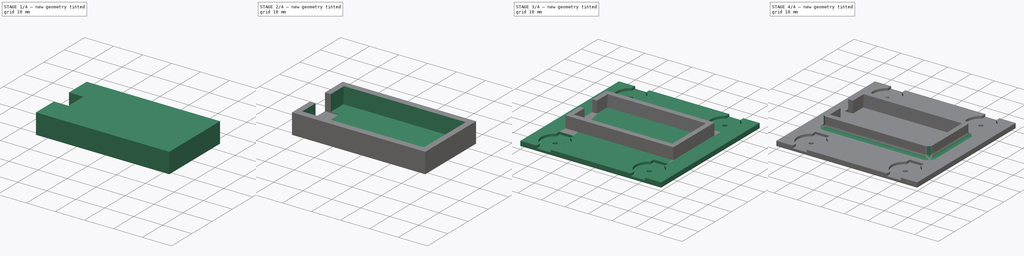
[diagram: build sequence overview — one tinted view per stage of 4, left to right]
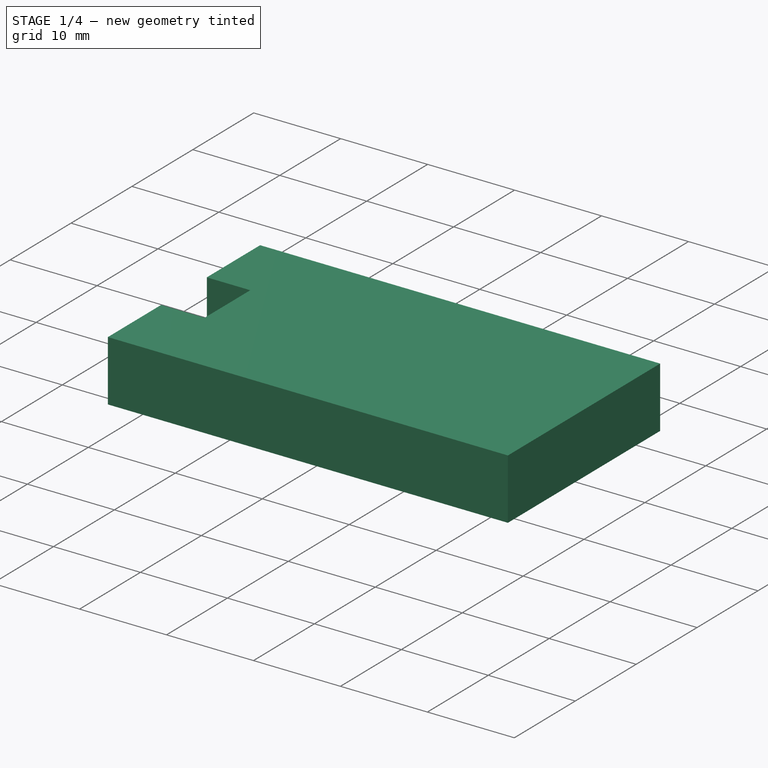
[diagram: stage 1 of 4 — iso view after this stage's code; geometry added in this stage tinted green]
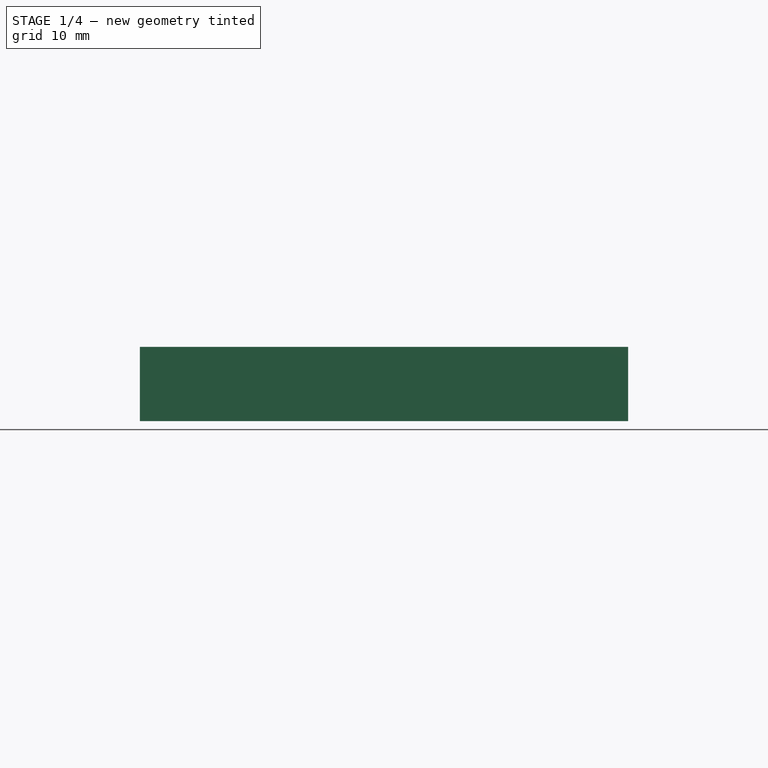
[diagram: stage 1 of 4 — front view after this stage's code; geometry added in this stage tinted green]
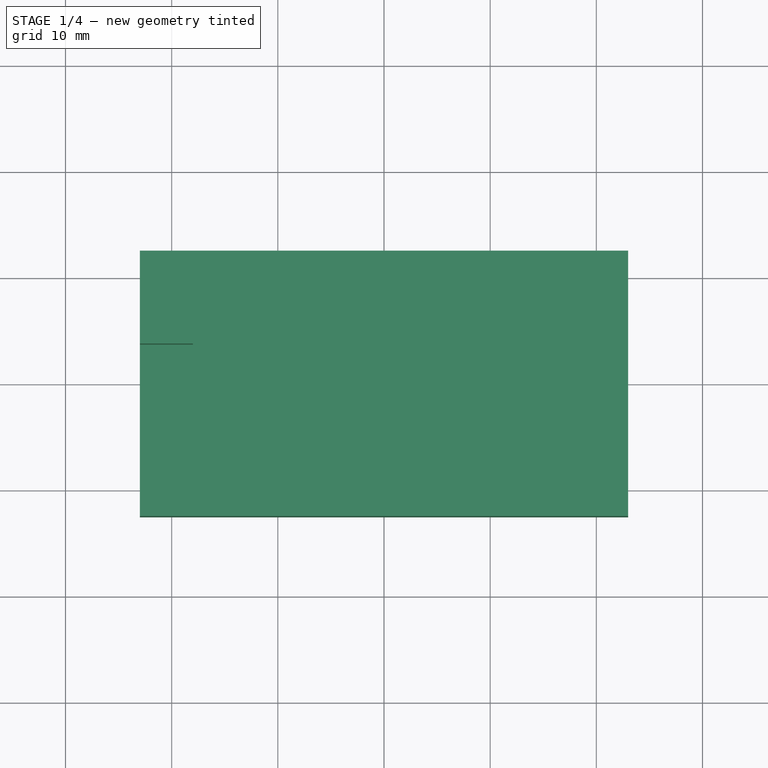
[diagram: stage 1 of 4 — top view after this stage's code; geometry added in this stage tinted green]
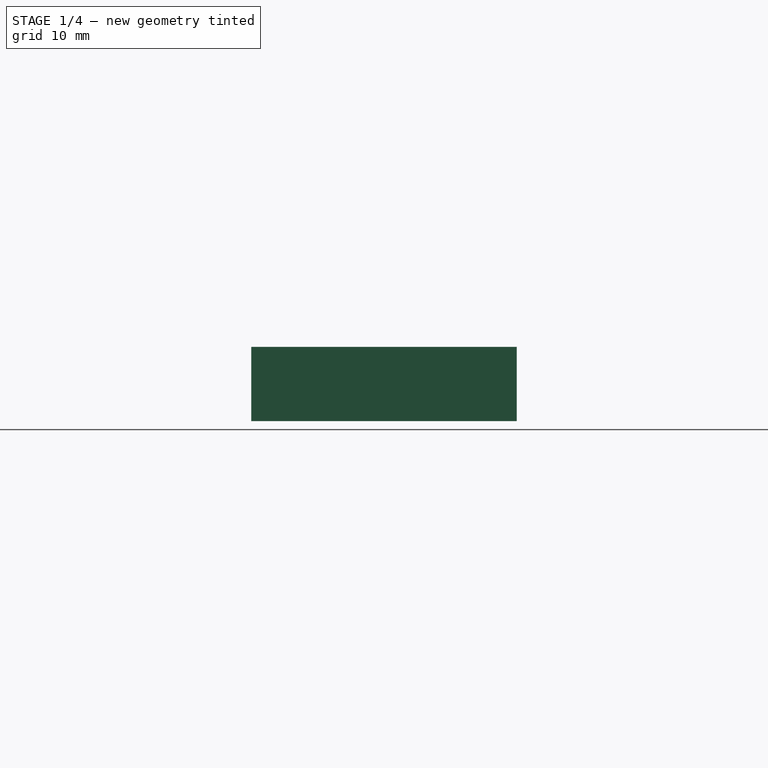
[diagram: stage 1 of 4 — right view after this stage's code; geometry added in this stage tinted green]
FCSTD DOCUMENT  (FreeCAD 0.17R13519 (Git))
Label: Soporte_servo_chincheta
License: CreativeCommons Attribution-ShareAlike
LicenseURL: http://creativecommons.org/licenses/by-sa/4.0/
objects: Sketcher::SketchObject×6, PartDesign::Pad×3, PartDesign::Body×3, PartDesign::Pocket×3, Part::Feature×2, Part::Cut×1, Part::MultiFuse×1, Part::Fillet×1
note: 26 computed .brp shape members not serialized (recipe doc carries the construction recipe); baked Part::Feature solids carry a one-line shape summary decoded from their .brp

FEATURE [Sketcher::SketchObject] Sketch001
  MapMode = 5
  Support = -> [XY_Plane001]
  sketch-geometry (4):
    g0: LineSegment StartX=-23 StartY=12.5 StartZ=0 EndX=23 EndY=12.5 EndZ=0
    g1: LineSegment StartX=23 StartY=12.5 StartZ=0 EndX=23 EndY=-12.5 EndZ=0
    g2: LineSegment StartX=23 StartY=-12.5 StartZ=0 EndX=-23 EndY=-12.5 EndZ=0
    g3: LineSegment StartX=-23 StartY=-12.5 StartZ=0 EndX=-23 EndY=12.5 EndZ=0
  constraints (11):
    c: Coincident(g0,g1)
    c: Coincident(g1,g2)
    c: Coincident(g2,g3)
    c: Coincident(g3,g0)
    c: Horizontal(g0)
    c: Horizontal(g2)
    c: Vertical(g1)
    c: Vertical(g3)
    c: Symmetric(g0,g1,g-1)
    c: DistanceX(g0,g0) = 46
    c: DistanceY(g3,g3) = 25
FEATURE [PartDesign::Pad] Pad001
  Length = 7
  Length2 = 100
  Profile = -> Sketch001
  Refine = true
  Type = 0
FEATURE [PartDesign::Body] Body002
  Group = -> [Sketch002,Pad002]
  Origin = -> Origin002
  Tip = -> Pad002
FEATURE [Sketcher::SketchObject] Sketch003
  MapMode = 5
  Placement = pos=(-23,0,0) rot=(0.57735,-0.57735,-0.57735;2.0944rad)
  Support = -> [Pad001]
  sketch-geometry (4):
    g0: LineSegment StartX=-3.75 StartY=8.56582 StartZ=0 EndX=3.75 EndY=8.56582 EndZ=0
    g1: LineSegment StartX=3.75 StartY=8.56582 StartZ=0 EndX=3.75 EndY=1.15667 EndZ=0
    g2: LineSegment StartX=3.75 StartY=1.15667 StartZ=0 EndX=-3.75 EndY=1.15667 EndZ=0
    g3: LineSegment StartX=-3.75 StartY=1.15667 StartZ=0 EndX=-3.75 EndY=8.56582 EndZ=0
  constraints (10):
    c: Coincident(g0,g1)
    c: Coincident(g1,g2)
    c: Coincident(g2,g3)
    c: Coincident(g3,g0)
    c: Horizontal(g0)
    c: Horizontal(g2)
    c: Vertical(g1)
    c: Vertical(g3)
    c: DistanceX(g0,g0) = 7.5
    c: Symmetric(g0,g0,g-2)
FEATURE [PartDesign::Pocket] Pocket
  BaseFeature = -> Pad001
  Length = 5
  Length2 = 100
  Profile = -> Sketch003
  Refine = true
  Type = 0
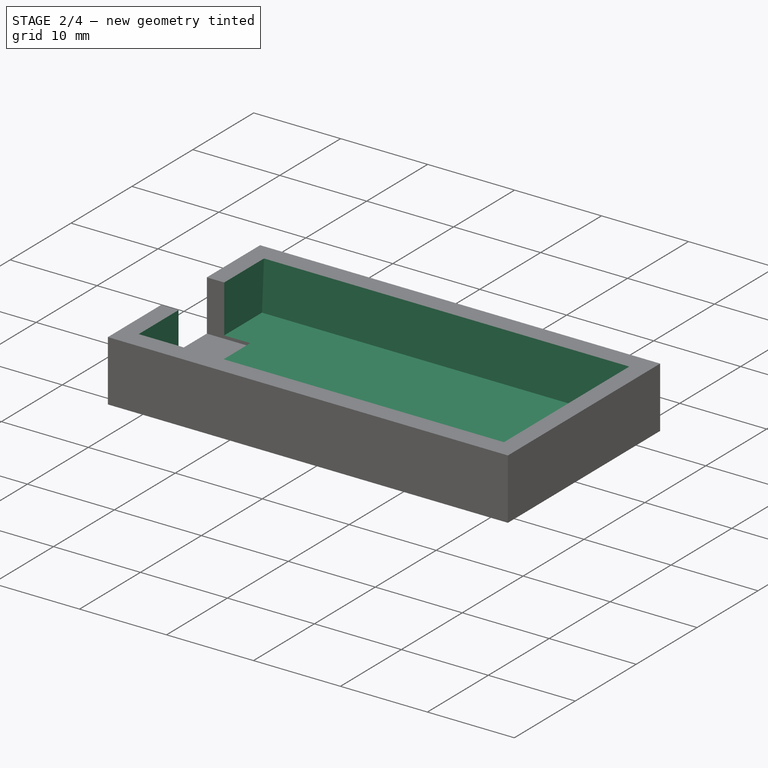
[diagram: stage 2 of 4 — iso view after this stage's code; geometry added in this stage tinted green]
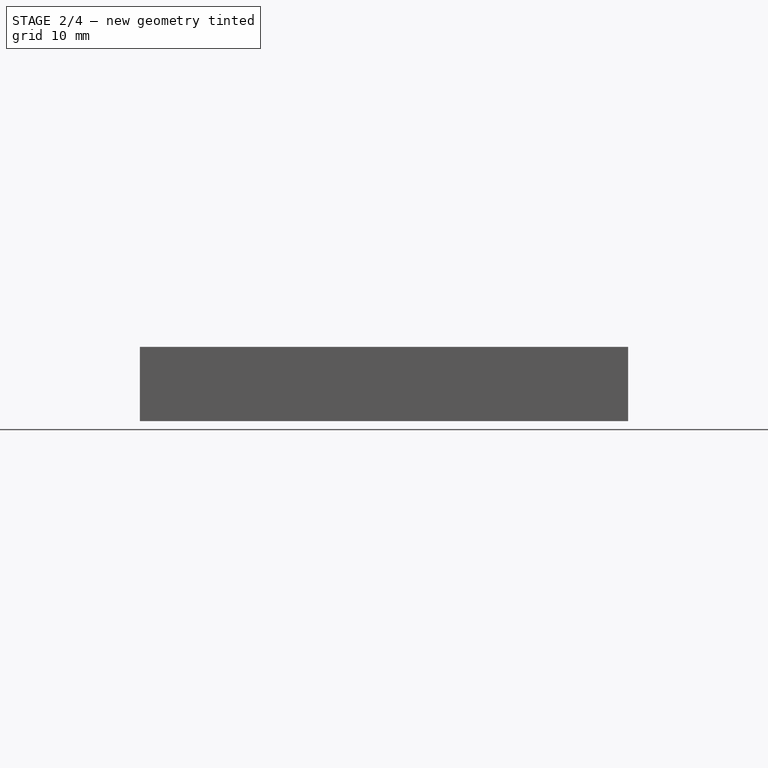
[diagram: stage 2 of 4 — front view after this stage's code; geometry added in this stage tinted green]
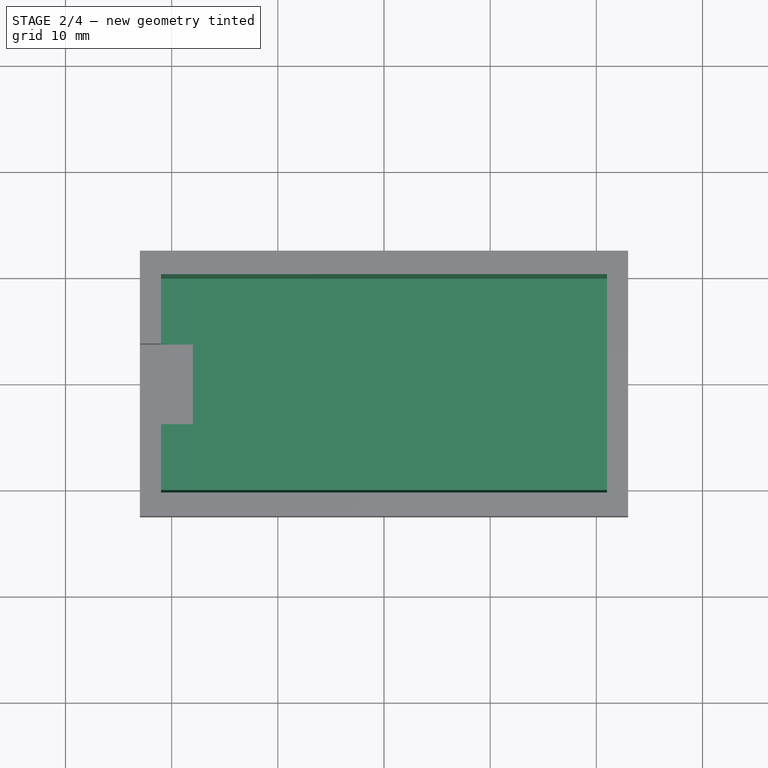
[diagram: stage 2 of 4 — top view after this stage's code; geometry added in this stage tinted green]
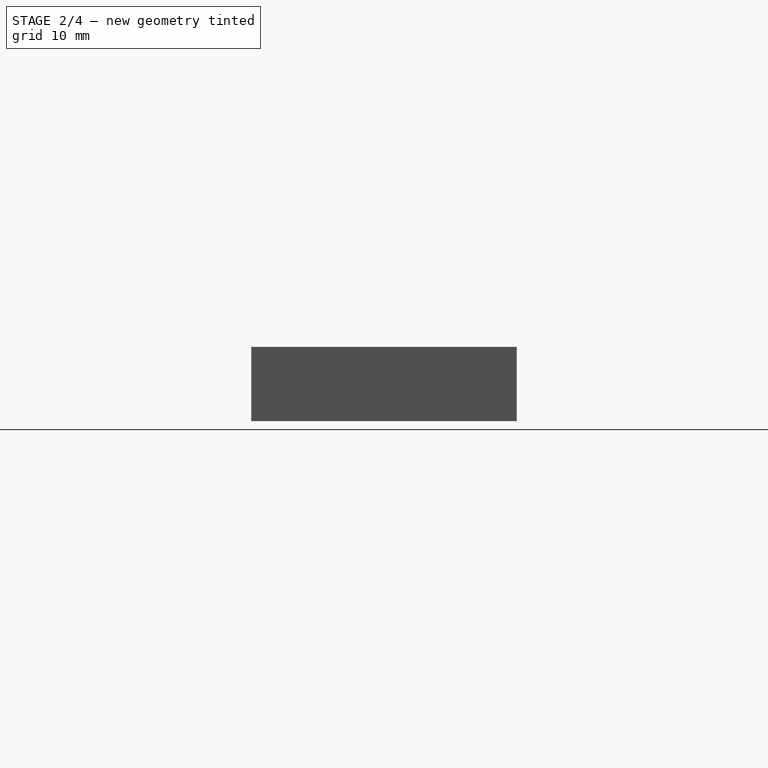
[diagram: stage 2 of 4 — right view after this stage's code; geometry added in this stage tinted green]
FEATURE [Sketcher::SketchObject] Sketch002
  ExternalGeometry = -> [Pad001]
  MapMode = 5
  Placement = pos=(0,0,0) rot=(0.57735,0.57735,0.57735;2.0944rad)
  Support = -> [YZ_Plane002]
  sketch-geometry (5):
    g0: LineSegment StartX=-10.2864 StartY=7 StartZ=0 EndX=-9.95 EndY=1.5 EndZ=0
    g1: LineSegment StartX=-9.95 StartY=1.5 StartZ=0 EndX=9.95 EndY=1.5 EndZ=0
    g2: LineSegment StartX=9.95 StartY=1.5 StartZ=0 EndX=10.2864 EndY=7 EndZ=0
    g3: LineSegment StartX=10.2864 StartY=7 StartZ=0 EndX=-10.2864 EndY=7 EndZ=0
    g4: LineSegment [constr] StartX=-9.95 StartY=1.5 StartZ=0 EndX=-9.95 EndY=8.77267 EndZ=0
  constraints (14):
    c: PointOnObject(g0,g-3)
    c: Coincident(g0,g1)
    c: Horizontal(g1)
    c: Coincident(g1,g2)
    c: PointOnObject(g2,g-3)
    c: Coincident(g2,g3)
    c: Coincident(g3,g0)
    c: Coincident(g4,g0)
    c: Vertical(g4)
    c: DistanceY(g0,g0) = 5.5
    c: Angle(g4,g0) = 0.0610865
    c: Symmetric(g0,g2,g-2)
    c: Symmetric(g0,g1,g-2)
    c: DistanceX(g1,g1) = 19.9
FEATURE [PartDesign::Pad] Pad002
  Length = 42
  Length2 = 100
  Midplane = true
  Placement = pos=(0,0,0) rot=(0.57735,0.57735,0.57735;2.0944rad)
  Profile = -> Sketch002
  Refine = true
  Type = 0
FEATURE [PartDesign::Body] Body
  Group = -> [Sketch,Pad,Sketch004,Pocket001,Sketch005,Pocket002]
  Origin = -> Origin
  Tip = -> Pocket002
FEATURE [Part::Cut] Cut
  Base = -> Pocket
  Refine = true
  Tool = -> Pad002
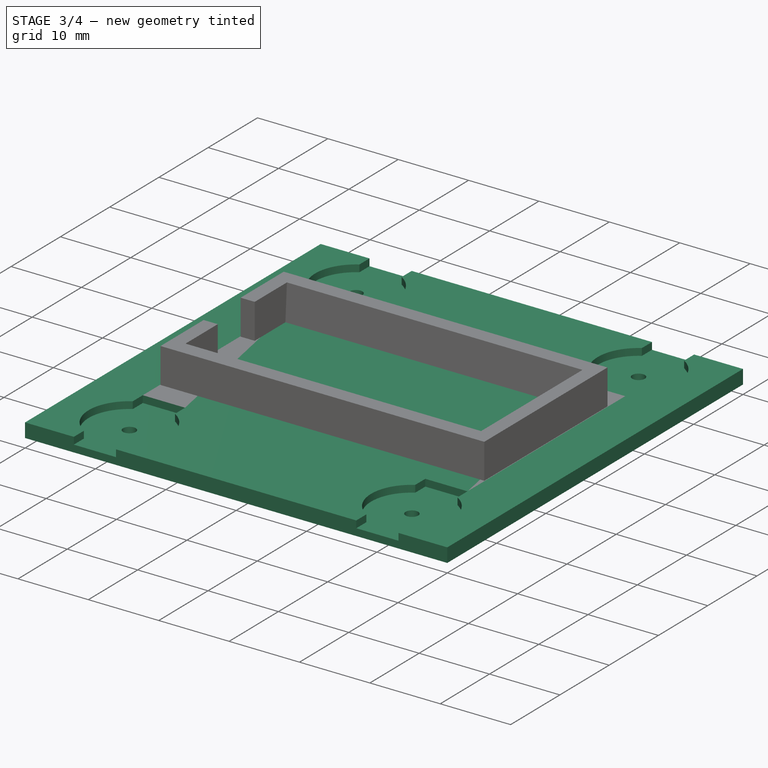
[diagram: stage 3 of 4 — iso view after this stage's code; geometry added in this stage tinted green]
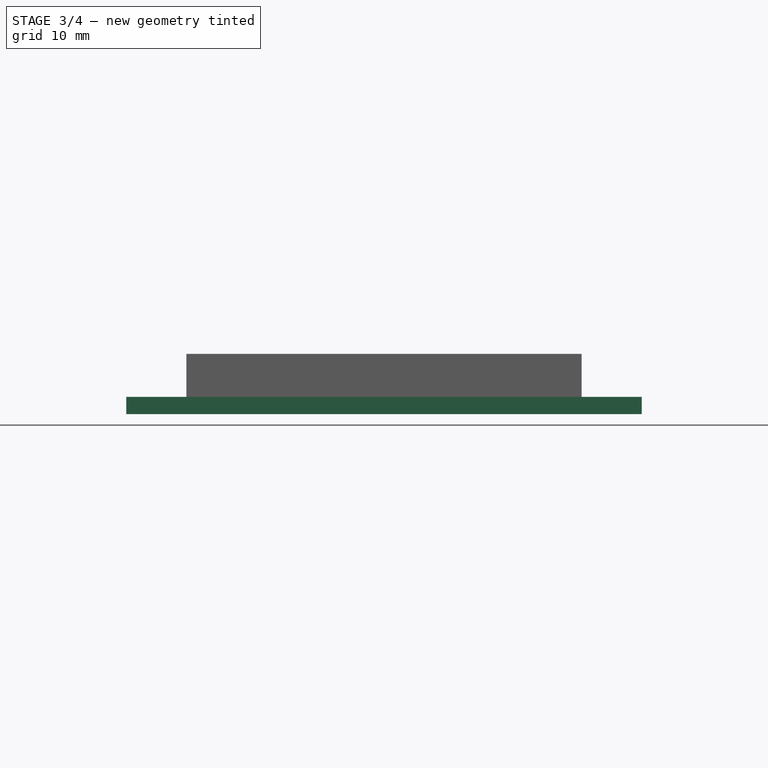
[diagram: stage 3 of 4 — front view after this stage's code; geometry added in this stage tinted green]
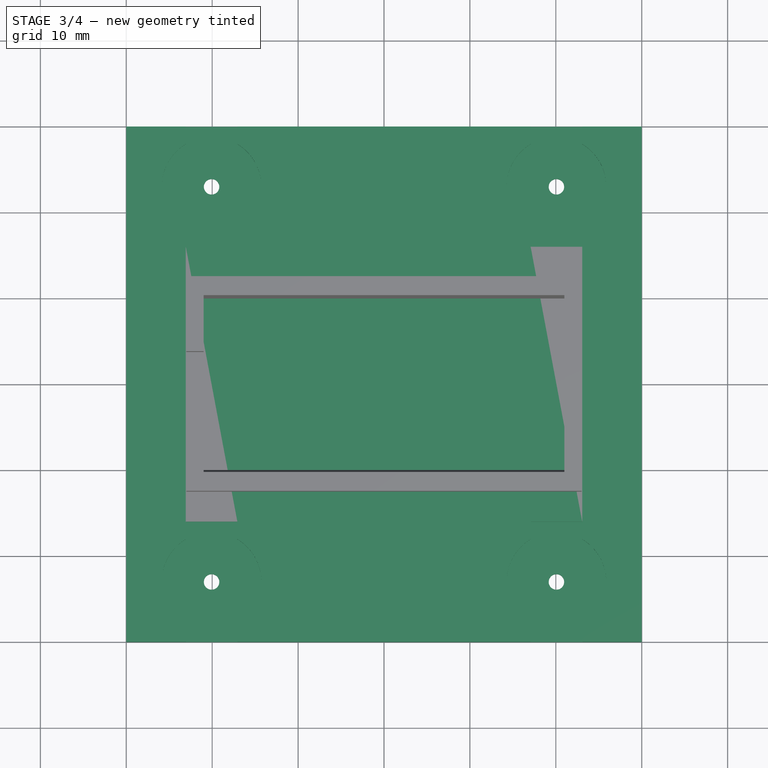
[diagram: stage 3 of 4 — top view after this stage's code; geometry added in this stage tinted green]
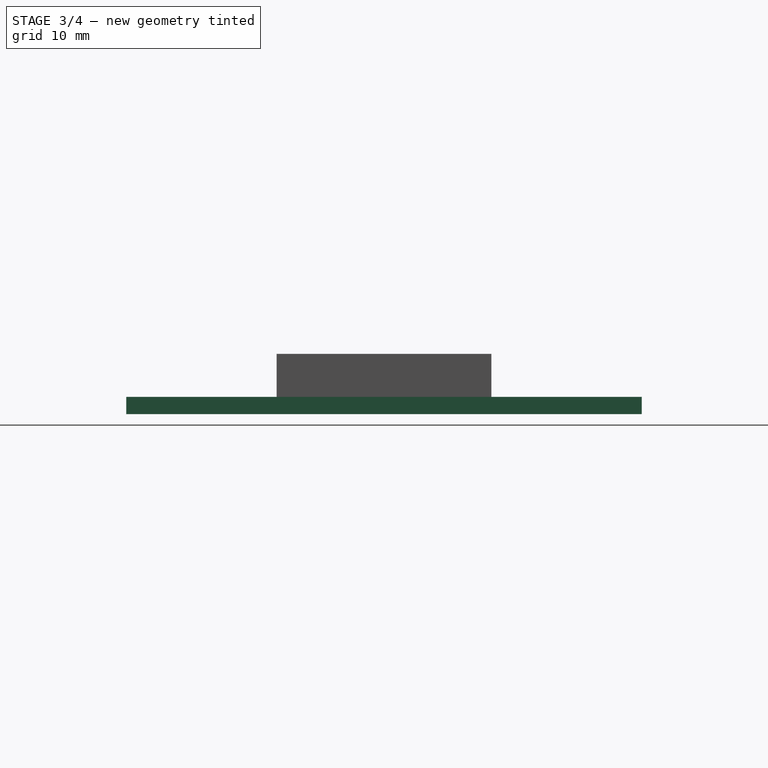
[diagram: stage 3 of 4 — right view after this stage's code; geometry added in this stage tinted green]
FEATURE [Sketcher::SketchObject] Sketch
  MapMode = 5
  Support = -> [XY_Plane]
  sketch-geometry (4):
    g0: LineSegment StartX=-30 StartY=30 StartZ=0 EndX=30 EndY=30 EndZ=0
    g1: LineSegment StartX=30 StartY=30 StartZ=0 EndX=30 EndY=-30 EndZ=0
    g2: LineSegment StartX=30 StartY=-30 StartZ=0 EndX=-30 EndY=-30 EndZ=0
    g3: LineSegment StartX=-30 StartY=-30 StartZ=0 EndX=-30 EndY=30 EndZ=0
  constraints (11):
    c: Coincident(g0,g1)
    c: Coincident(g1,g2)
    c: Coincident(g2,g3)
    c: Coincident(g3,g0)
    c: Horizontal(g0)
    c: Horizontal(g2)
    c: Vertical(g1)
    c: Vertical(g3)
    c: Symmetric(g0,g1,g-1)
    c: DistanceX(g0,g0) = 60
    c: Equal(g0,g1)
FEATURE [PartDesign::Pad] Pad  label="Base"
  Length = 2
  Length2 = 100
  Profile = -> Sketch
  Refine = true
  Type = 0
FEATURE [PartDesign::Body] Body001
  Group = -> [Sketch001,Pad001,Sketch003,Pocket]
  Origin = -> Origin001
  Tip = -> Pocket
FEATURE [Sketcher::SketchObject] Sketch004
  ExternalGeometry = -> [Pad]
  MapMode = 5
  Placement = pos=(0,0,2) rot=(0,0,1;0rad)
  Support = -> [Pad]
  sketch-geometry (32):
    g0: LineSegment StartX=-23.071 StartY=-27.9639 StartZ=0 EndX=-23.071 EndY=-30 EndZ=0
    g1: LineSegment StartX=-23.071 StartY=-30 StartZ=0 EndX=-17.071 EndY=-30 EndZ=0
    g2: LineSegment StartX=-17.071 StartY=-30 StartZ=0 EndX=-17.071 EndY=-27.9639 EndZ=0
    g3: LineSegment StartX=-23.071 StartY=-18.0361 StartZ=0 EndX=-23.071 EndY=-16 EndZ=0
    g4: LineSegment StartX=-23.071 StartY=-16 StartZ=0 EndX=-17.071 EndY=-16 EndZ=0
    g5: LineSegment StartX=-17.071 StartY=-16 StartZ=0 EndX=-17.071 EndY=-18.0361 EndZ=0
    g6: ArcOfCircle CenterX=-20.071 CenterY=-23 CenterZ=0 NormalX=0 NormalY=0 NormalZ=1 AngleXU=0 Radius=5.8 StartAngle=2.11442 EndAngle=4.16876
    g7: ArcOfCircle CenterX=-20.071 CenterY=-23 CenterZ=0 NormalX=0 NormalY=0 NormalZ=1 AngleXU=0 Radius=5.8 StartAngle=5.25601 EndAngle=7.31036
    g8: LineSegment StartX=23.071 StartY=-27.9639 StartZ=0 EndX=23.071 EndY=-30 EndZ=0
    g9: LineSegment StartX=23.071 StartY=-30 StartZ=0 EndX=17.071 EndY=-30 EndZ=0
    g10: LineSegment StartX=17.071 StartY=-30 StartZ=0 EndX=17.071 EndY=-27.9639 EndZ=0
    g11: LineSegment StartX=23.071 StartY=-18.0361 StartZ=0 EndX=23.071 EndY=-16 EndZ=0
    g12: LineSegment StartX=23.071 StartY=-16 StartZ=0 EndX=17.071 EndY=-16 EndZ=0
    g13: LineSegment StartX=17.071 StartY=-16 StartZ=0 EndX=17.071 EndY=-18.0361 EndZ=0
    g14: ArcOfCircle CenterX=20.071 CenterY=-23 CenterZ=0 NormalX=0 NormalY=0 NormalZ=1 AngleXU=0 Radius=5.8 StartAngle=5.25601 EndAngle=7.31036
    g15: ArcOfCircle CenterX=20.071 CenterY=-23 CenterZ=0 NormalX=0 NormalY=0 NormalZ=1 AngleXU=0 Radius=5.8 StartAngle=2.11442 EndAngle=4.16876
    g16: LineSegment StartX=-23.071 StartY=27.9639 StartZ=0 EndX=-23.071 EndY=30 EndZ=0
    g17: LineSegment StartX=-23.071 StartY=30 StartZ=0 EndX=-17.071 EndY=30 EndZ=0
    g18: LineSegment StartX=-17.071 StartY=30 StartZ=0 EndX=-17.071 EndY=27.9639 EndZ=0
    g19: LineSegment StartX=-23.071 StartY=18.0361 StartZ=0 EndX=-23.071 EndY=16 EndZ=0
    g20: LineSegment StartX=-23.071 StartY=16 StartZ=0 EndX=-17.071 EndY=16 EndZ=0
    g21: LineSegment StartX=-17.071 StartY=16 StartZ=0 EndX=-17.071 EndY=18.0361 EndZ=0
    g22: ArcOfCircle CenterX=-20.071 CenterY=23 CenterZ=0 NormalX=0 NormalY=0 NormalZ=1 AngleXU=0 Radius=5.8 StartAngle=2.11442 EndAngle=4.16876
    g23: ArcOfCircle CenterX=-20.071 CenterY=23 CenterZ=0 NormalX=0 NormalY=0 NormalZ=1 AngleXU=0 Radius=5.8 StartAngle=5.25601 EndAngle=7.31036
    g24: LineSegment StartX=23.071 StartY=27.9639 StartZ=0 EndX=23.071 EndY=30 EndZ=0
    g25: LineSegment StartX=23.071 StartY=30 StartZ=0 EndX=17.071 EndY=30 EndZ=0
    g26: LineSegment StartX=17.071 StartY=30 StartZ=0 EndX=17.071 EndY=27.9639 EndZ=0
    g27: LineSegment StartX=23.071 StartY=18.0361 StartZ=0 EndX=23.071 EndY=16 EndZ=0
    g28: LineSegment StartX=23.071 StartY=16 StartZ=0 EndX=17.071 EndY=16 EndZ=0
    g29: LineSegment StartX=17.071 StartY=16 StartZ=0 EndX=17.071 EndY=18.0361 EndZ=0
    g30: ArcOfCircle CenterX=20.071 CenterY=23 CenterZ=0 NormalX=0 NormalY=0 NormalZ=1 AngleXU=0 Radius=5.8 StartAngle=5.25601 EndAngle=7.31036
    g31: ArcOfCircle CenterX=20.071 CenterY=23 CenterZ=0 NormalX=0 NormalY=0 NormalZ=1 AngleXU=0 Radius=5.8 StartAngle=2.11442 EndAngle=4.16876
  constraints (87):
    c: PointOnObject(g0,g-3)
    c: Vertical(g0)
    c: Coincident(g0,g1)
    c: Horizontal(g1)
    c: Coincident(g1,g2)
    c: Vertical(g2)
    c: Vertical(g3)
    c: Coincident(g3,g4)
    c: Horizontal(g4)
    c: Coincident(g4,g5)
    c: Vertical(g5)
    c: Coincident(g6,g3)
    c: Coincident(g6,g0)
    c: Coincident(g7,g6)
    c: Coincident(g7,g5)
    c: Coincident(g7,g2)
    c: Equal(g3,g5)
    c: Equal(g5,g0)
    c: Equal(g0,g2)
    c: Equal(g4,g1)
    c: DistanceX(g4,g4) = 6
    c: DistanceY(g1,g4) = 14
    c: Radius(g6) = 5.8
    c: Equal(g6,g7)
    c: Vertical(g8)
    c: Coincident(g8,g9)
    c: Horizontal(g9)
    c: Coincident(g9,g10)
    c: Vertical(g10)
    c: Vertical(g11)
    c: Coincident(g11,g12)
    c: Horizontal(g12)
    c: Coincident(g12,g13)
    c: Vertical(g13)
    c: Coincident(g14,g11)
    c: Coincident(g14,g8)
    c: Coincident(g15,g14)
    c: Coincident(g15,g13)
    c: Coincident(g15,g10)
    c: Equal(g11,g13)
    c: Equal(g13,g8)
    c: Equal(g8,g10)
    c: Equal(g12,g9)
    c: Radius(g14) = 5.8
    c: Equal(g14,g15)
    c: Vertical(g16)
    c: Coincident(g16,g17)
    c: Horizontal(g17)
    c: Coincident(g17,g18)
    c: Vertical(g18)
    c: Vertical(g19)
    c: Coincident(g19,g20)
    c: Horizontal(g20)
    c: Coincident(g20,g21)
    c: Vertical(g21)
    c: Coincident(g22,g19)
    c: Coincident(g22,g16)
    c: Coincident(g23,g22)
    c: Coincident(g23,g21)
    c: Coincident(g23,g18)
    c: Equal(g19,g21)
    c: Equal(g21,g16)
    c: Equal(g16,g18)
    c: Equal(g20,g17)
    c: Radius(g22) = 5.8
    c: Equal(g22,g23)
    c: Vertical(g24)
    c: Coincident(g24,g25)
    c: Horizontal(g25)
    c: Coincident(g25,g26)
    c: Vertical(g26)
    c: Vertical(g27)
    c: Coincident(g27,g28)
    c: Horizontal(g28)
    c: Coincident(g28,g29)
    c: Vertical(g29)
    c: Coincident(g30,g27)
    c: Coincident(g30,g24)
    c: Coincident(g31,g30)
    c: Coincident(g31,g29)
    c: Coincident(g31,g26)
    c: Equal(g27,g29)
    c: Equal(g29,g24)
    c: Equal(g24,g26)
    c: Equal(g28,g25)
    c: Radius(g30) = 5.8
    c: Equal(g30,g31)
FEATURE [PartDesign::Pocket] Pocket001
  BaseFeature = -> Pad
  Length = 1
  Length2 = 100
  Profile = -> Sketch004
  Refine = true
  Type = 0
FEATURE [Sketcher::SketchObject] Sketch005
  ExternalGeometry = -> [Pocket001]
  MapMode = 5
  Placement = pos=(0,0,2) rot=(0,0,1;0rad)
  Support = -> [Pocket001]
  sketch-geometry (4):
    g0: Circle CenterX=-20.071 CenterY=-23 CenterZ=0 NormalX=0 NormalY=0 NormalZ=1 AngleXU=0 Radius=0.9
    g1: Circle CenterX=20.071 CenterY=-23 CenterZ=0 NormalX=0 NormalY=0 NormalZ=1 AngleXU=0 Radius=0.9
    g2: Circle CenterX=-20.071 CenterY=23 CenterZ=0 NormalX=0 NormalY=0 NormalZ=1 AngleXU=0 Radius=0.9
    g3: Circle CenterX=20.071 CenterY=23 CenterZ=0 NormalX=0 NormalY=0 NormalZ=1 AngleXU=0 Radius=0.9
  constraints (5):
    c: Coincident(g0,g-3)
    c: Radius(g0) = 0.9
    c: Radius(g1) = 0.9
    c: Radius(g2) = 0.9
    c: Radius(g3) = 0.9
FEATURE [PartDesign::Pocket] Pocket002  label="Base_con_chincheta"
  BaseFeature = -> Pocket001
  Length = 5
  Length2 = 100
  Profile = -> Sketch005
  Refine = true
  Type = 0
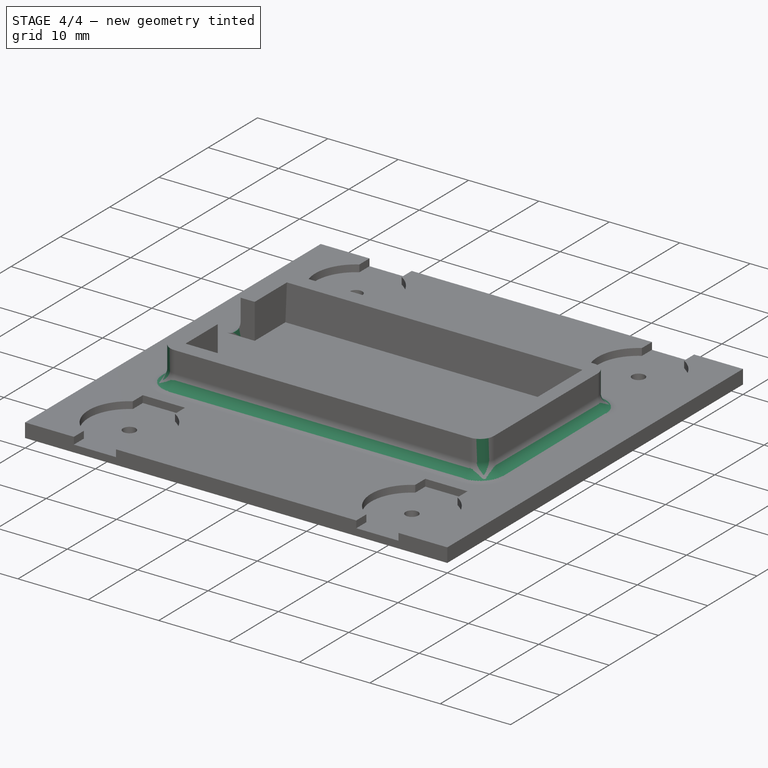
[diagram: stage 4 of 4 — iso view after this stage's code; geometry added in this stage tinted green]
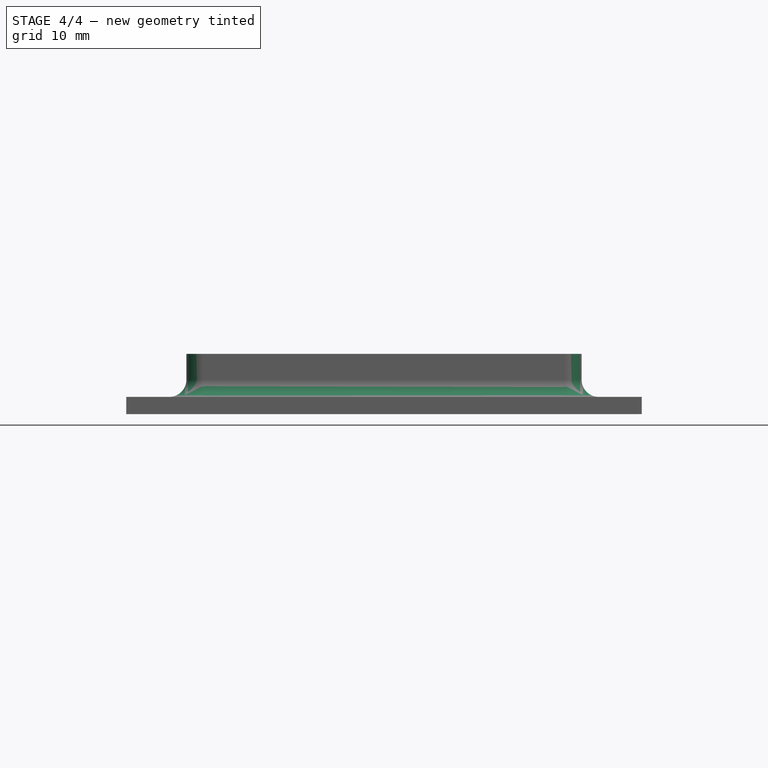
[diagram: stage 4 of 4 — front view after this stage's code; geometry added in this stage tinted green]
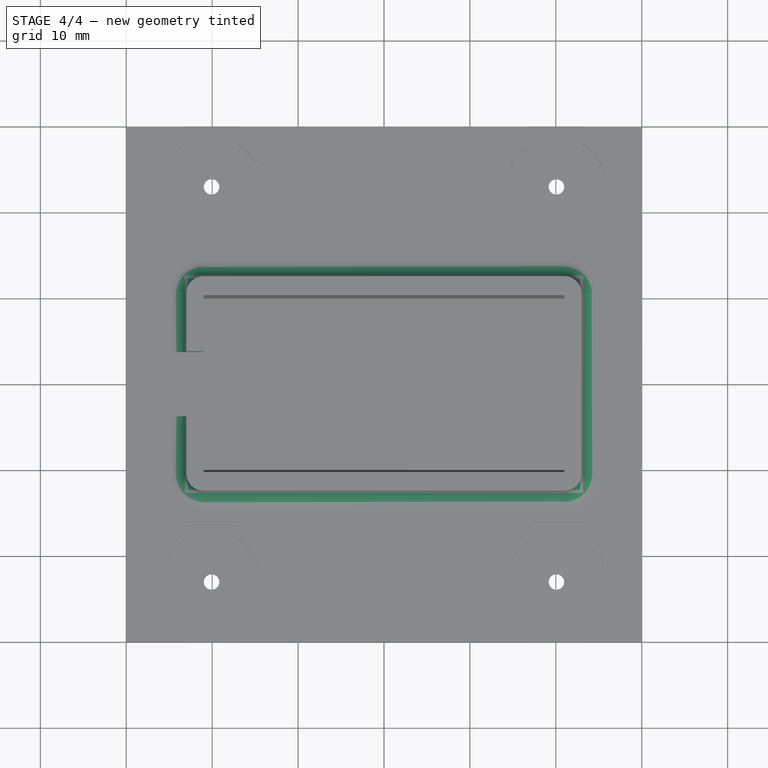
[diagram: stage 4 of 4 — top view after this stage's code; geometry added in this stage tinted green]
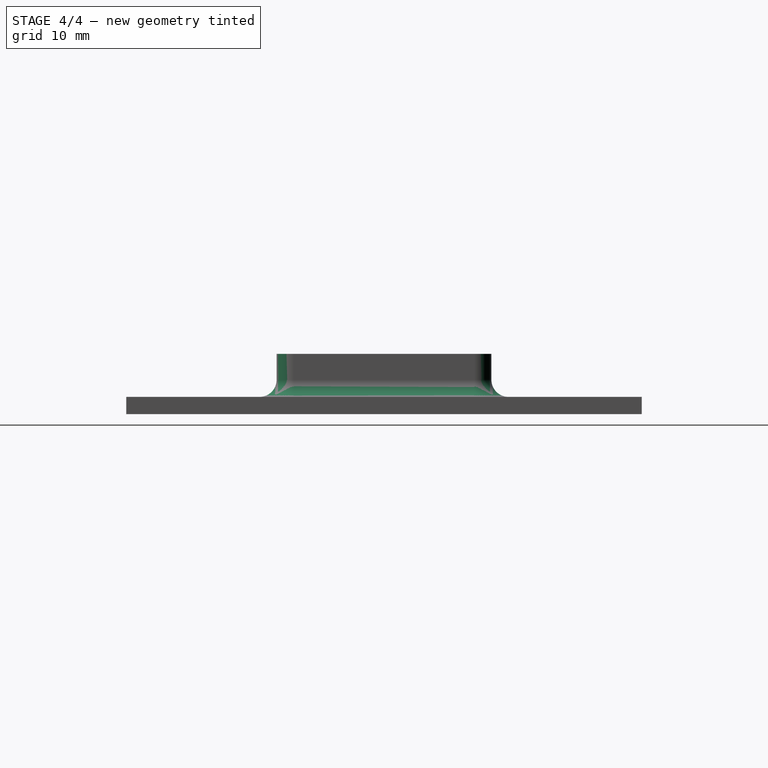
[diagram: stage 4 of 4 — right view after this stage's code; geometry added in this stage tinted green]
FEATURE [Part::MultiFuse] Fusion  label="Soporte-bruto"
  Refine = true
  Shapes = -> [Cut,Pocket002]
FEATURE [Part::Fillet] Fillet
  Base = -> Fusion
  Edges = 9 edges r=2: [Edge48,Edge49,Edge50,Edge58,Edge59,Edge127,Edge129,Edge130,Edge148]
FEATURE [Part::Feature] Fusion009002001  label="Servo-Futaba3003-final001"
  Placement = pos=(0,0,0) rot=(0,0,1;3.14159rad)
  shape: bbox 55.5 x 20 x 41.74 mm, 365 faces (baked)
FEATURE [Part::Feature] Fusion009003001  label="servo-wires001"
  Placement = pos=(-19,0,2.9) rot=(0,0,1;3.14159rad)
  shape: bbox 10 x 3.6 x 1.2 mm, 13 faces, 3 solids (baked)
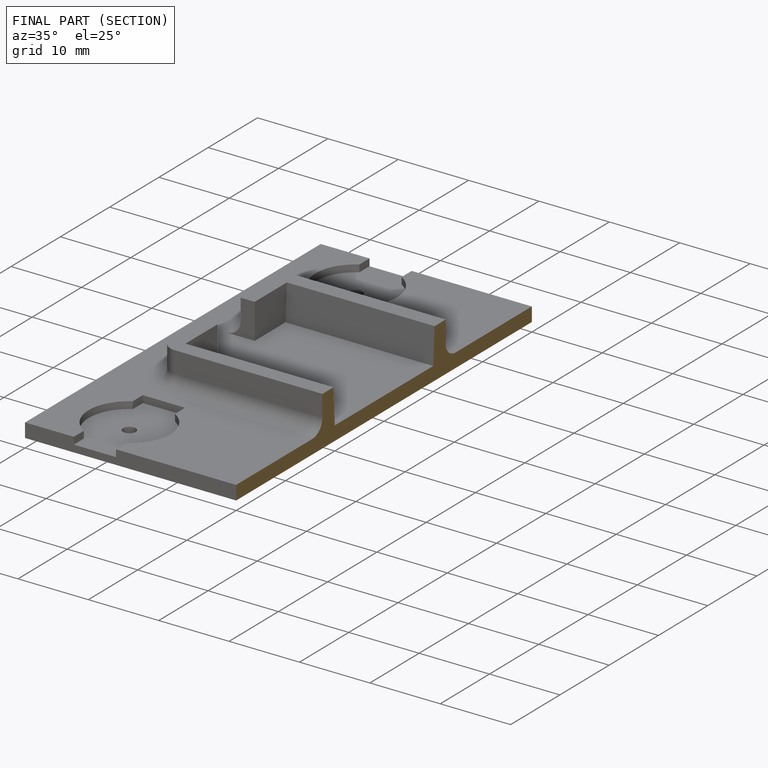
[diagram: finished part — half-section view (interior)]
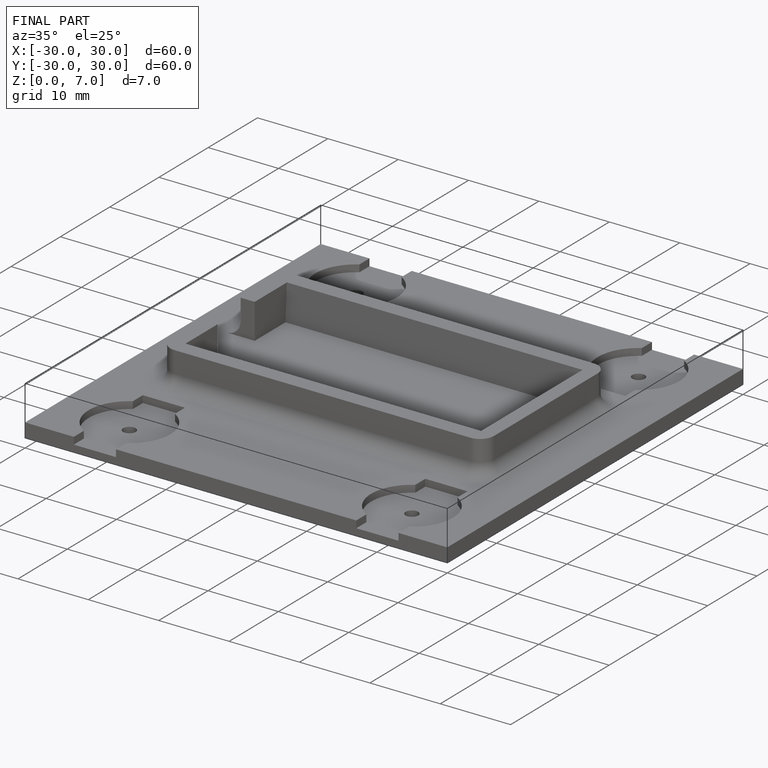
[diagram: finished part — iso view with bounding-box wireframe]
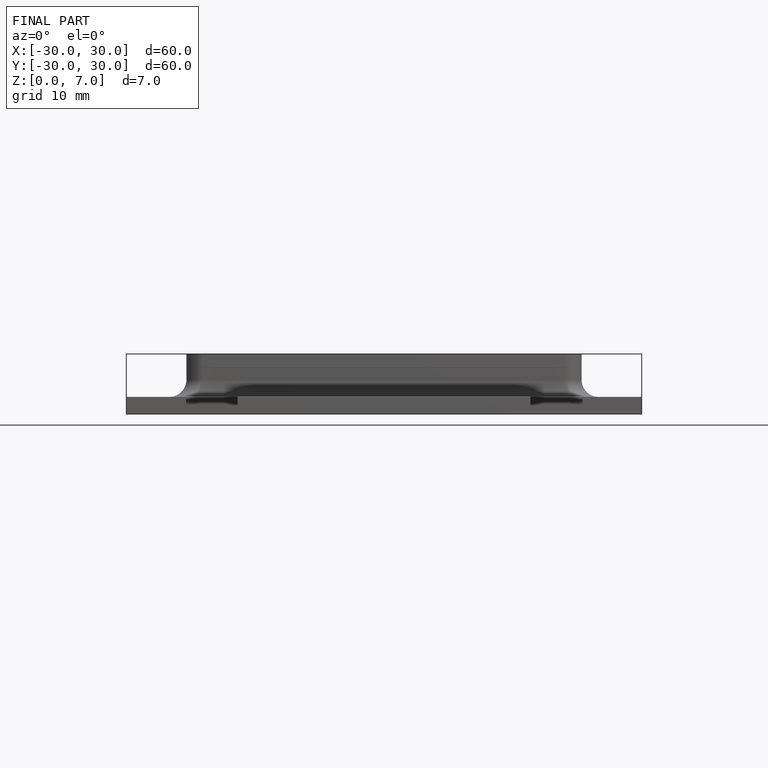
[diagram: finished part — front view with bounding-box wireframe]
